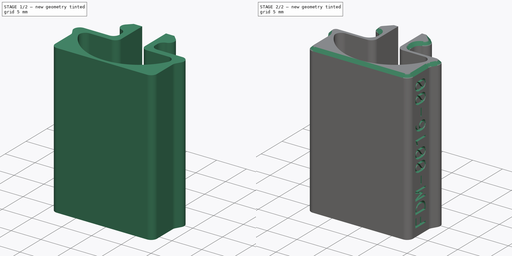
[diagram: build sequence overview — one tinted view per stage of 2, left to right]
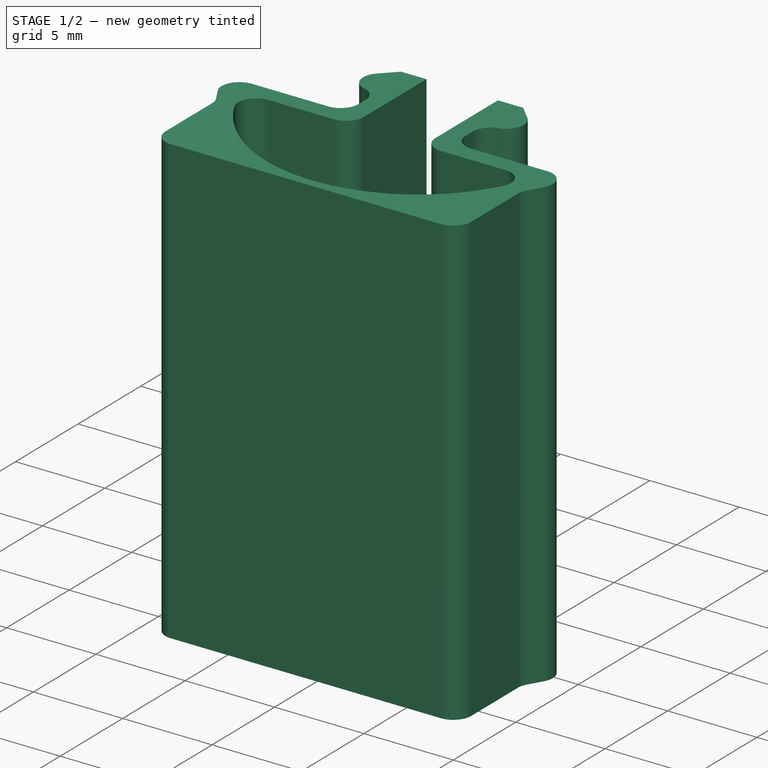
[diagram: stage 1 of 2 — iso view after this stage's code; geometry added in this stage tinted green]
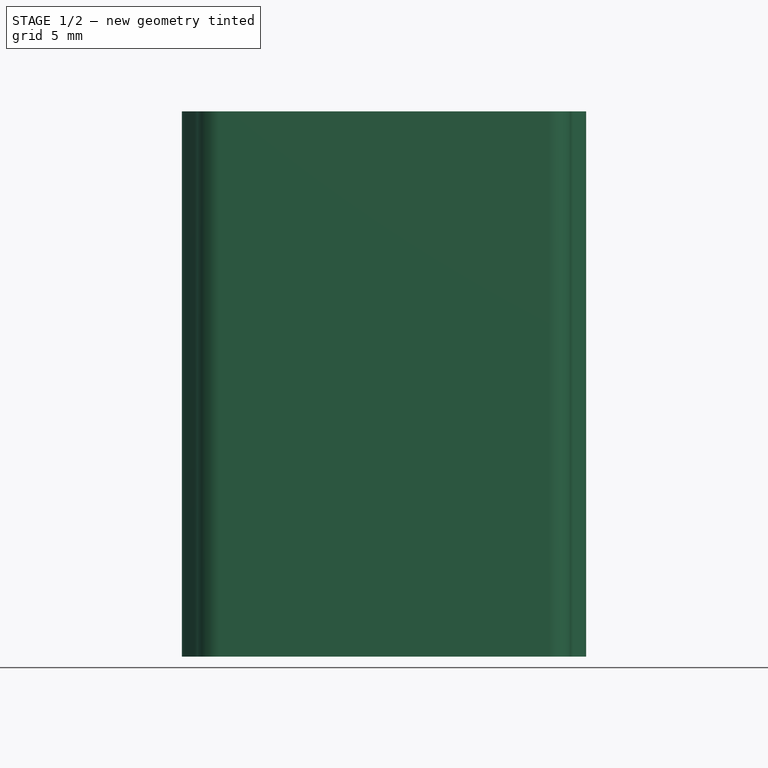
[diagram: stage 1 of 2 — front view after this stage's code; geometry added in this stage tinted green]
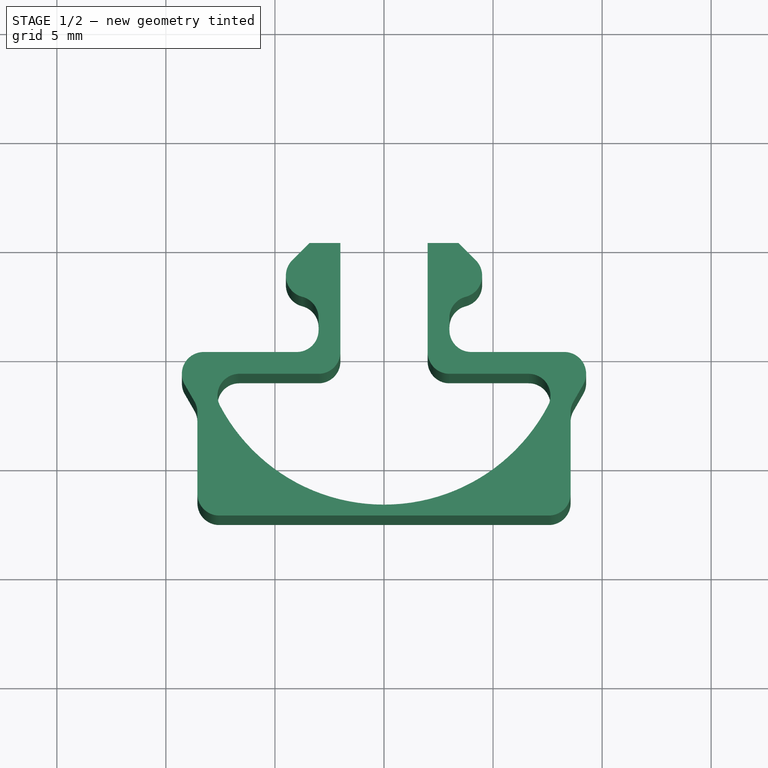
[diagram: stage 1 of 2 — top view after this stage's code; geometry added in this stage tinted green]
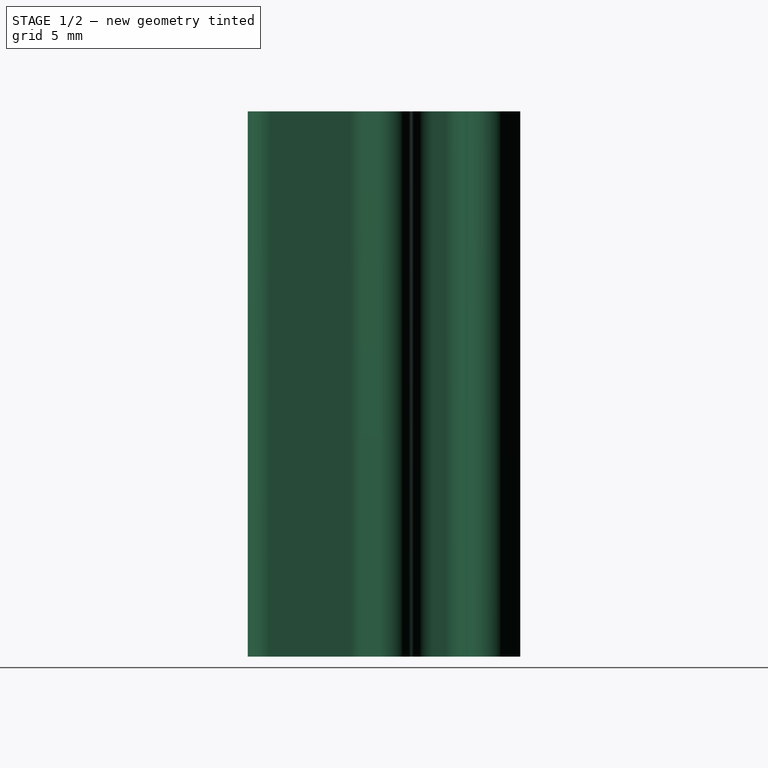
[diagram: stage 1 of 2 — right view after this stage's code; geometry added in this stage tinted green]
FCSTD DOCUMENT  (FreeCAD 0.19R24291 (Git))
Label: FDM-0016_cable-clip
License: All rights reserved
LicenseURL: http://en.wikipedia.org/wiki/All_rights_reserved
objects: PartDesign::Plane×2, Sketcher::SketchObject×1, PartDesign::Pad×1, PartDesign::Fillet×1, PartDesign::Chamfer×1, Part::Part2DObjectPython×1, PartDesign::Pocket×1, PartDesign::Body×1
note: 13 computed .brp shape members not serialized (recipe doc carries the construction recipe); baked Part::Feature solids carry a one-line shape summary decoded from their .brp

FEATURE [Sketcher::SketchObject] Sketch
  FullyConstrained = true
  MapMode = 5
  Support = -> [XY_Plane]
  sketch-geometry (22):
    g0: LineSegment StartX=-2 StartY=5 StartZ=0 EndX=-3.41421 EndY=5 EndZ=0
    g1: LineSegment StartX=-3.41421 StartY=5 StartZ=0 EndX=-4.20711 EndY=4.20711 EndZ=0
    g2: ArcOfCircle CenterX=-3.5 CenterY=3.5 CenterZ=0 NormalX=0 NormalY=0 NormalZ=1 AngleXU=0 Radius=1 StartAngle=2.35619 EndAngle=4.71239
    g3: LineSegment StartX=-3.5 StartY=2.5 StartZ=0 EndX=-3 EndY=2.5 EndZ=0
    g4: LineSegment StartX=-3 StartY=2.5 StartZ=0 EndX=-3 EndY=0 EndZ=0
    g5: LineSegment StartX=-3 StartY=0 StartZ=0 EndX=-10 EndY=0 EndZ=0
    g6: LineSegment StartX=-10 StartY=0 StartZ=0 EndX=-8.55662 EndY=-2.5 EndZ=0
    g7: LineSegment StartX=8.55662 StartY=-2.5 StartZ=0 EndX=10 EndY=0 EndZ=0
    g8: LineSegment StartX=10 StartY=0 StartZ=0 EndX=3 EndY=0 EndZ=0
    g9: LineSegment StartX=3 StartY=0 StartZ=0 EndX=3 EndY=2.5 EndZ=0
    g10: LineSegment StartX=3 StartY=2.5 StartZ=0 EndX=3.5 EndY=2.5 EndZ=0
    g11: ArcOfCircle CenterX=3.5 CenterY=3.5 CenterZ=0 NormalX=0 NormalY=0 NormalZ=1 AngleXU=0 Radius=1 StartAngle=4.71239 EndAngle=7.06858
    g12: LineSegment StartX=4.20711 StartY=4.20711 StartZ=0 EndX=3.41421 EndY=5 EndZ=0
    g13: LineSegment StartX=3.41421 StartY=5 StartZ=0 EndX=2 EndY=5 EndZ=0
    g14: LineSegment StartX=2 StartY=5 StartZ=0 EndX=2 EndY=-1 EndZ=0
    g15: LineSegment StartX=2 StartY=-1 StartZ=0 EndX=8.12404 EndY=-1 EndZ=0
    g16: LineSegment StartX=-8.12404 StartY=-1 StartZ=0 EndX=-2 EndY=-1 EndZ=0
    g17: LineSegment StartX=-2 StartY=-1 StartZ=0 EndX=-2 EndY=5 EndZ=0
    g18: ArcOfCircle CenterX=0 CenterY=1.5 CenterZ=0 NormalX=0 NormalY=0 NormalZ=1 AngleXU=0 Radius=8.5 StartAngle=3.44012 EndAngle=5.98465
    g19: LineSegment StartX=-8.55662 StartY=-2.5 StartZ=0 EndX=-8.55662 EndY=-7.5 EndZ=0
    g20: LineSegment StartX=-8.55662 StartY=-7.5 StartZ=0 EndX=8.55662 EndY=-7.5 EndZ=0
    g21: LineSegment StartX=8.55662 StartY=-7.5 StartZ=0 EndX=8.55662 EndY=-2.5 EndZ=0
  constraints (65):
    c: Horizontal(g0)
    c: Coincident(g0,g1)
    c: Coincident(g2,g1)
    c: Coincident(g2,g3)
    c: Coincident(g3,g4)
    c: Coincident(g4,g5)
    c: Coincident(g5,g6)
    c: Coincident(g7,g8)
    c: Horizontal(g8)
    c: Coincident(g8,g9)
    c: Coincident(g9,g10)
    c: Coincident(g11,g10)
    c: Tangent(g11,g12) = -1.5708
    c: Coincident(g12,g13)
    c: Coincident(g13,g14)
    c: Vertical(g14)
    c: Coincident(g14,g15)
    c: Horizontal(g15)
    c: Coincident(g16,g17)
    c: Coincident(g17,g0)
    c: Vertical(g17)
    c: Horizontal(g16)
    c: Horizontal(g5)
    c: Vertical(g4)
    c: Vertical(g9)
    c: Horizontal(g3)
    c: Horizontal(g10)
    c: Tangent(g2,g3)
    c: Tangent(g1,g2)
    c: Tangent(g10,g11)
    c: Symmetric(g0,g13,g-2)
    c: Angle(g13,g12) = 2.35619
    c: Angle(g1,g0) = 2.35619
    c: PointOnObject(g8,g5)
    c: PointOnObject(g14,g16)
    c: DistanceY(g16,g4) = 1
    c: PointOnObject(g4,g-1)
    c: DistanceX(g4,g16) = 1
    c: DistanceX(g14,g8) = 1
    c: PointOnObject(g9,g3)
    c: Symmetric(g0,g12,g-2)
    c: DistanceX(g3,g9) = 6
    c: Diameter(g11) = 2
    c: Diameter(g2) = 2
    c: DistanceX(g2,g11) = 7
    c: DistanceY(g-1,g0) = 5
    c: PointOnObject(g18,g-2)
    c: Coincident(g18,g16)
    c: Coincident(g18,g15)
    c: Coincident(g6,g19)
    c: Vertical(g19)
    c: Coincident(g19,g20)
    c: Coincident(g20,g21)
    c: Coincident(g21,g7)
    c: Vertical(g21)
    c: Symmetric(g19,g20,g-2)
    c: DistanceX(g5,g-1) = 10
    c: DistanceX(g-1,g7) = 10
    c: Equal(g19,g21)
    c: DistanceY(g-1,g18) = 1.5
    c: DistanceY(g19,g-1) = 7.5
    c: Angle(g6,g5) = 1.0472
    c: DistanceY(g19,g19) = 5
    c: Diameter(g18) = 17
    c: DistanceY(g4,g4) = 2.5
FEATURE [PartDesign::Pad] Pad
  AllowMultiFace = false
  Direction = (1,1,1)
  Length = 25
  Length2 = 100
  Profile = -> Sketch
  Type = 0
FEATURE [PartDesign::Fillet] Fillet
  Base = -> Pad [Edge32,Edge29,Edge26,Edge35,Edge38,Edge23,Edge62,Edge1,Edge59,Edge2,Edge41,Edge20,Edge44,Edge17]
  BaseFeature = -> Pad
  Radius = 1
  SupportTransform = false
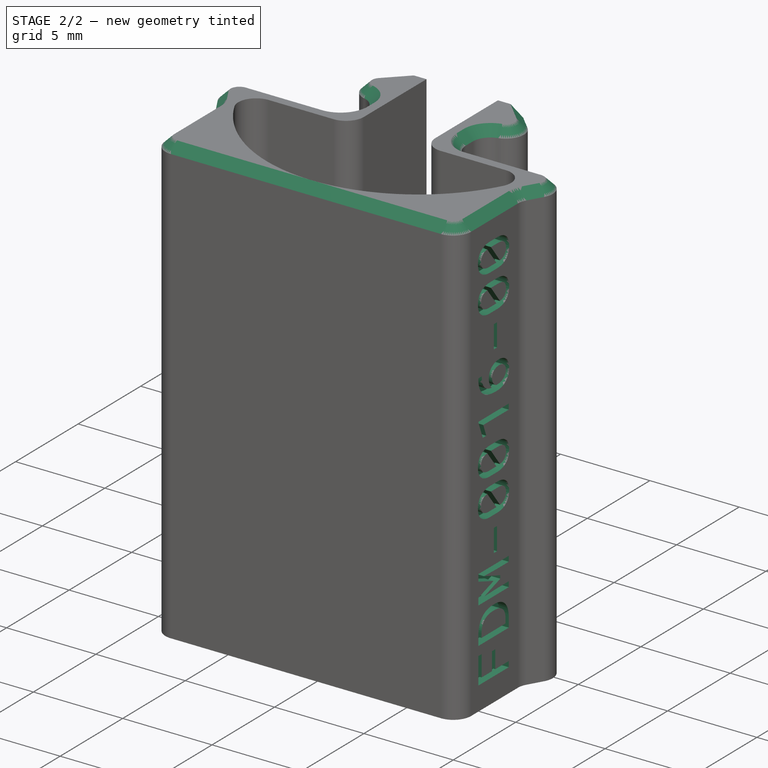
[diagram: stage 2 of 2 — iso view after this stage's code; geometry added in this stage tinted green]
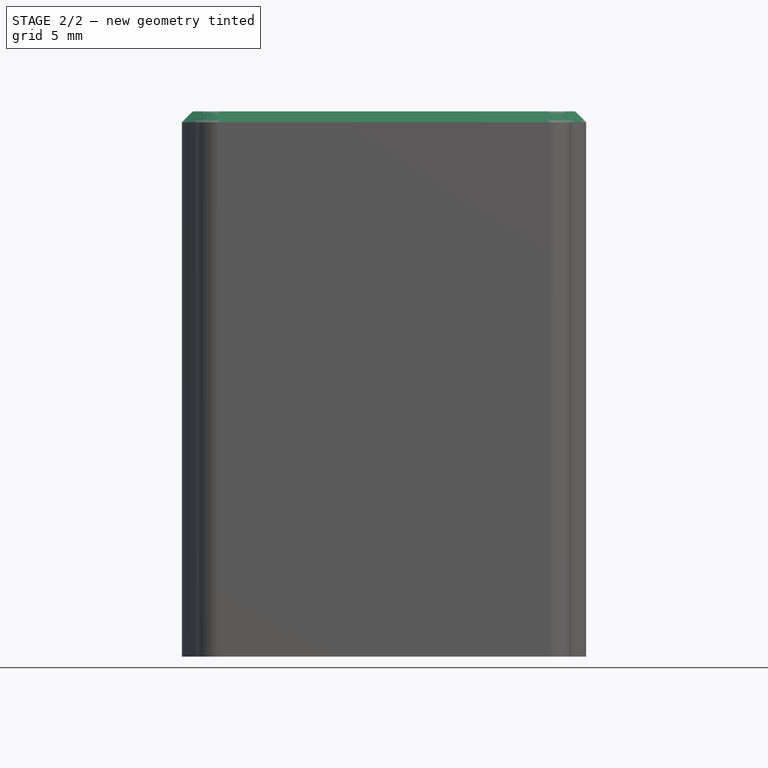
[diagram: stage 2 of 2 — front view after this stage's code; geometry added in this stage tinted green]
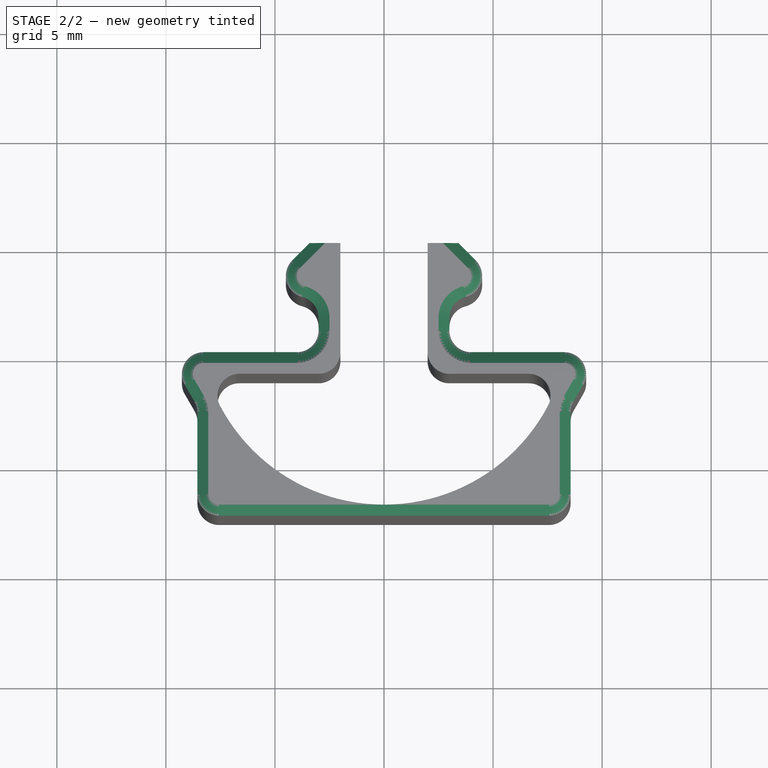
[diagram: stage 2 of 2 — top view after this stage's code; geometry added in this stage tinted green]
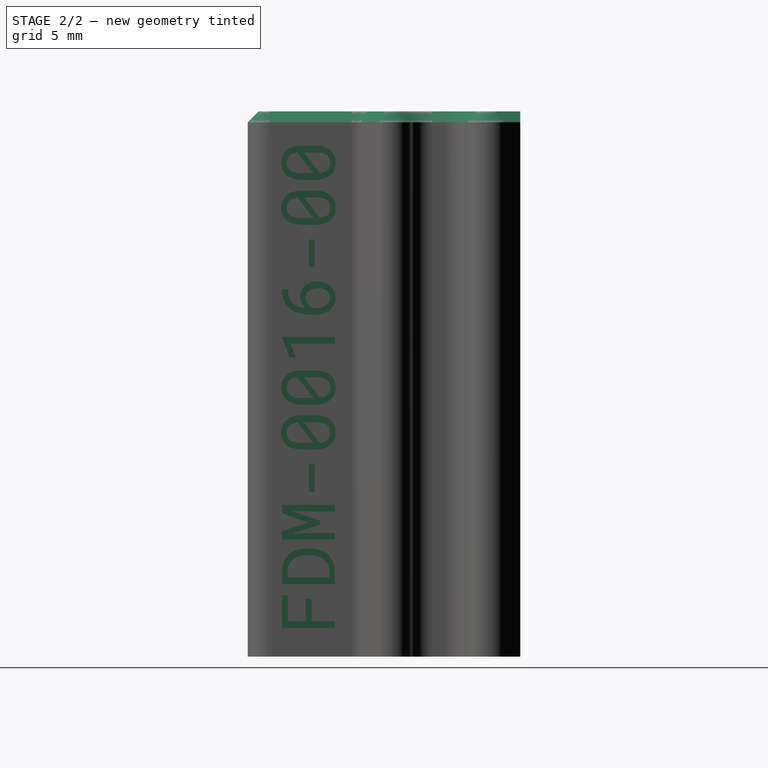
[diagram: stage 2 of 2 — right view after this stage's code; geometry added in this stage tinted green]
FEATURE [PartDesign::Chamfer] Chamfer
  Angle = 45
  Base = -> Fillet [Edge69]
  BaseFeature = -> Fillet
  ChamferType = 0
  FlipDirection = false
  Size = 0.5
  Size2 = 1
  SupportTransform = false
FEATURE [PartDesign::Plane] DatumPlane  label="PrintPlane"
  Length = 60
  MapMode = 5
  Placement = pos=(0,0,25) rot=(0,0,1;0rad)
  ResizeMode = 0
  Support = -> [Chamfer]
  Width = 60
FEATURE [PartDesign::Plane] DatumPlane001
  Length = 60
  MapMode = 5
  Placement = pos=(8.55662,0,0) rot=(0.57735,0.57735,0.57735;2.0944rad)
  ResizeMode = 0
  Support = -> [Chamfer]
  Width = 60
FEATURE [Part::Part2DObjectPython] ShapeString  label="PN"  # Draft 2D object (typed FeaturePython)
  AttachmentOffset = pos=(-3.5,1,0) rot=(0,0,1;1.5708rad)
  FontFile = ../../lib/fonts/RobotoMono-VariableFont_weight.ttf
  MapMode = 5
  Placement = pos=(8.55662,-3.5,1) rot=(0.707107,0,0.707107;3.14159rad)
  Size = 3
  String = FDM-0016-00
  Support = -> [DatumPlane001]
  Tracking = 0
  Visibility1 = false
  expr: Size = 3mm
FEATURE [PartDesign::Pocket] Pocket
  AllowMultiFace = false
  BaseFeature = -> Chamfer
  Length = 0.5
  Length2 = 100
  Profile = -> ShapeString
  Type = 0
FEATURE [PartDesign::Body] Body
  Group = -> [Sketch,Pad,Fillet,Chamfer,DatumPlane,ShapeString,DatumPlane001,Pocket]
  Origin = -> Origin
  Tip = -> Pocket
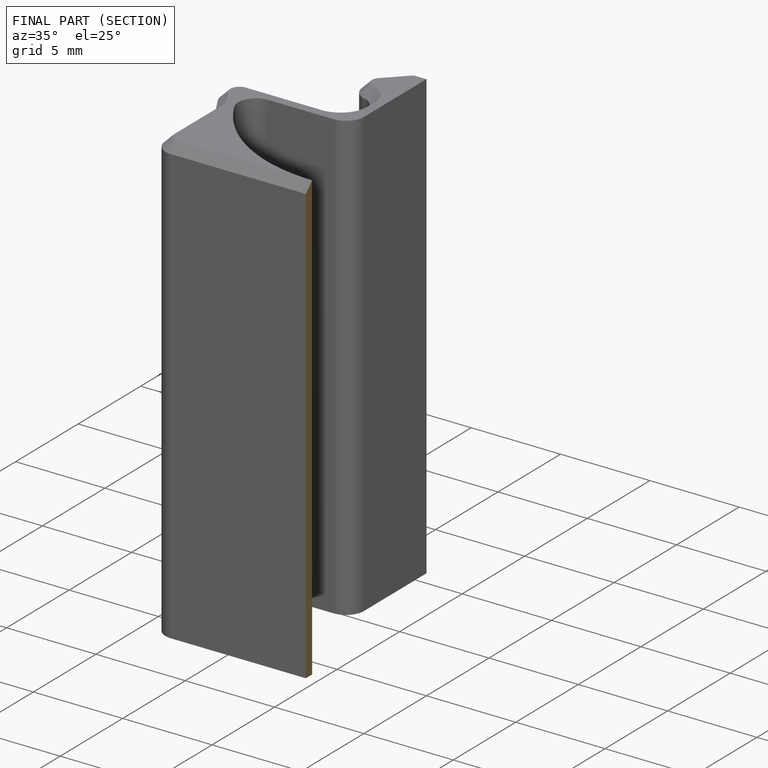
[diagram: finished part — half-section view (interior)]
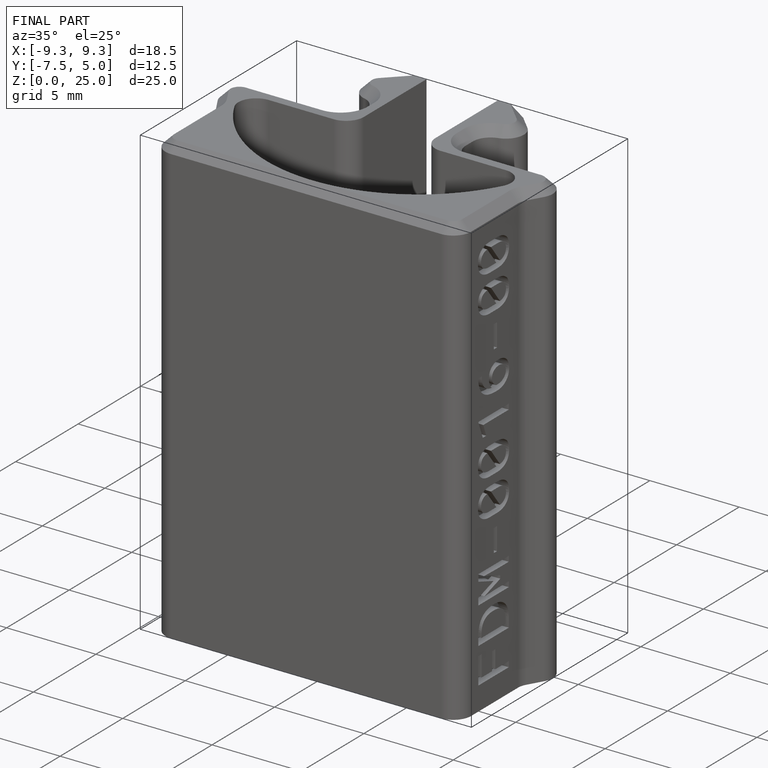
[diagram: finished part — iso view with bounding-box wireframe]
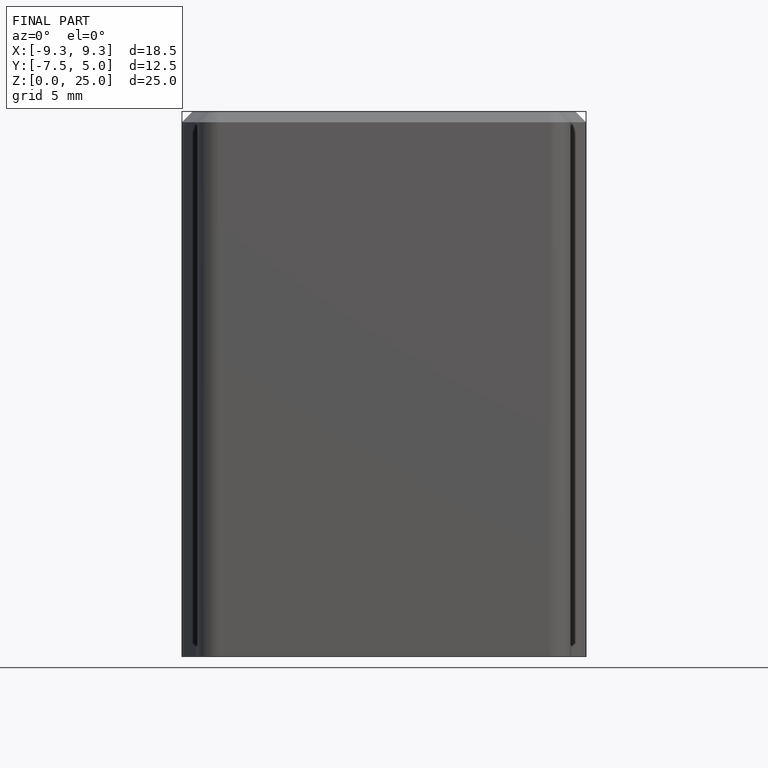
[diagram: finished part — front view with bounding-box wireframe]
